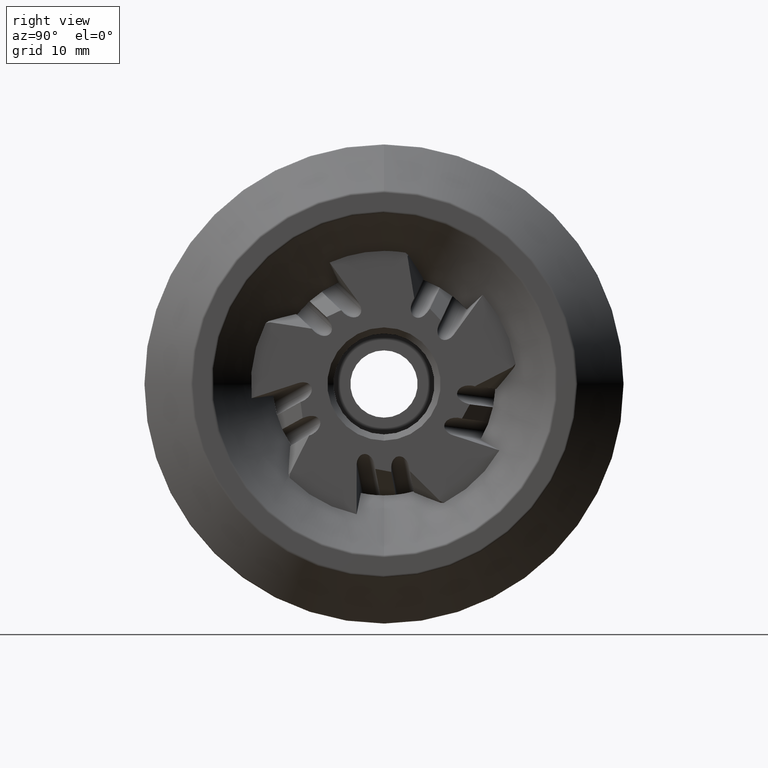
[diagram: clean part render]
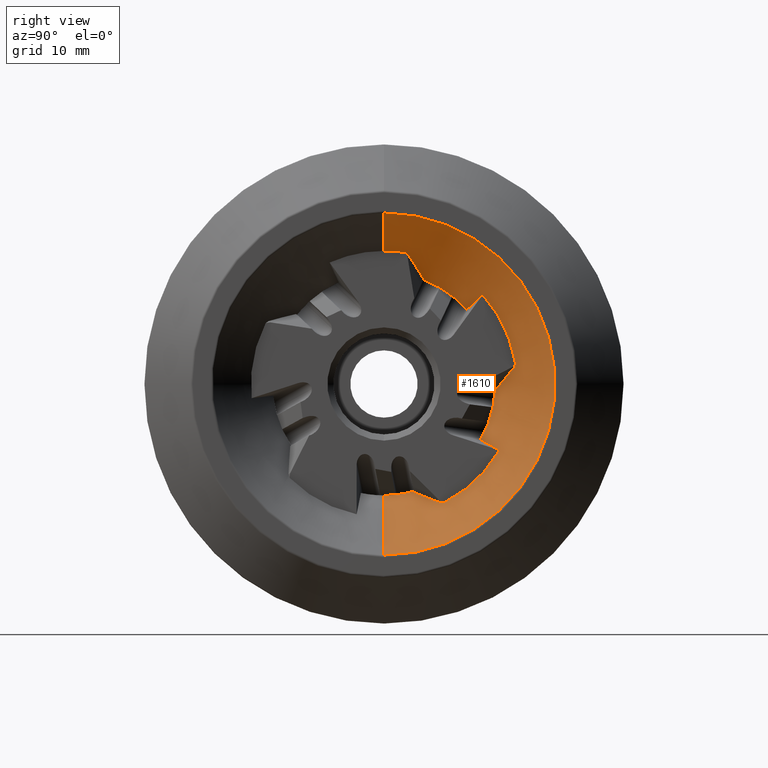
[diagram: same view with one face highlighted and labeled with its STEP entity id]
A machine part, right view. The second image highlights one B-rep face of the part: STEP entity #1610.
In plain terms, the highlighted conical surface has half-angle 45 deg.
Its self-contained STEP definition (entity closure, byte-faithful):
#580 = VERTEX_POINT ( 'NONE', #1577 ) ;
#612 = VERTEX_POINT ( 'NONE', #10104 ) ;
#639 = VERTEX_POINT ( 'NONE', #5611 ) ;
#661 = VERTEX_POINT ( 'NONE', #5484 ) ;
#663 = VERTEX_POINT ( 'NONE', #5487 ) ;
#667 = VERTEX_POINT ( 'NONE', #5613 ) ;
#680 = VERTEX_POINT ( 'NONE', #5650 ) ;
#689 = VERTEX_POINT ( 'NONE', #5565 ) ;
#698 = VERTEX_POINT ( 'NONE', #5556 ) ;
#703 = VERTEX_POINT ( 'NONE', #5535 ) ;
#706 = VERTEX_POINT ( 'NONE', #5581 ) ;
#713 = VERTEX_POINT ( 'NONE', #5588 ) ;
#989 = B_SPLINE_CURVE_WITH_KNOTS ( 'NONE', 3,
 ( #6163, #6164, #6169, #6170 ),
 .UNSPECIFIED., .F., .F.,
 ( 4, 4 ),
 ( 0.007157800767803730100, 0.01217775241202292100 ),
 .UNSPECIFIED. ) ;
#1024 = B_SPLINE_CURVE_WITH_KNOTS ( 'NONE', 3,
 ( #4531, #4530, #4536, #4537 ),
 .UNSPECIFIED., .F., .F.,
 ( 4, 4 ),
 ( 0.007157800767803723100, 0.01217775241202291200 ),
 .UNSPECIFIED. ) ;
#1330 = EDGE_LOOP ( 'NONE', ( #9914, #9913, #9916, #9915, #9918, #9917, #9920, #9919, #9922, #9921, #9928, #9923, #9926, #9927, #9924, #9925, #9933, #9932, #9929, #9931 ) ) ;
#1458 = FACE_OUTER_BOUND ( 'NONE', #1330, .T. ) ;
#1468 = CONICAL_SURFACE ( 'NONE', #2716, 18.20050506338827000, 0.7853981633974548300 ) ;
#1563 = AXIS2_PLACEMENT_3D ( 'NONE', #3791, #3792, #3793 ) ;
#1564 = AXIS2_PLACEMENT_3D ( 'NONE', #3794, #3795, #3796 ) ;
#1565 = AXIS2_PLACEMENT_3D ( 'NONE', #3787, #3788, #3789 ) ;
#1577 = CARTESIAN_POINT ( 'NONE',  ( -4.999999999999998200, 3.492265353784449900, 21.46780339715159500 ) ) ;
#1610 = ADVANCED_FACE ( 'NONE', ( #1458 ), #1468, .F. ) ;
#2557 = EDGE_CURVE ( 'NONE', #667, #3718, #5372, .T. ) ;
#2558 = EDGE_CURVE ( 'NONE', #713, #3675, #5299, .T. ) ;
#2559 = EDGE_CURVE ( 'NONE', #706, #3653, #5287, .T. ) ;
#2690 = EDGE_CURVE ( 'NONE', #3664, #612, #8651, .T. ) ;
#2716 = AXIS2_PLACEMENT_3D ( 'NONE', #5666, #5665, #5465 ) ;
#3298 = VERTEX_POINT ( 'NONE', #8020 ) ;
#3392 = VERTEX_POINT ( 'NONE', #8087 ) ;
#3547 = VERTEX_POINT ( 'NONE', #8142 ) ;
#3639 = VERTEX_POINT ( 'NONE', #8174 ) ;
#3653 = VERTEX_POINT ( 'NONE', #8182 ) ;
#3664 = VERTEX_POINT ( 'NONE', #8185 ) ;
#3675 = VERTEX_POINT ( 'NONE', #8195 ) ;
#3718 = VERTEX_POINT ( 'NONE', #8216 ) ;
#3787 = CARTESIAN_POINT ( 'NONE',  ( -8.549494936611603500, 0.0000000000000000000, 0.0000000000000000000 ) ) ;
#3788 = DIRECTION ( 'NONE',  ( -1.000000000000000000, -0.0000000000000000000, -0.0000000000000000000 ) ) ;
#3789 = DIRECTION ( 'NONE',  ( 0.0000000000000000000, 0.0000000000000000000, 1.000000000000000000 ) ) ;
#3791 = CARTESIAN_POINT ( 'NONE',  ( -8.549494936611603500, 0.0000000000000000000, 0.0000000000000000000 ) ) ;
#3792 = DIRECTION ( 'NONE',  ( -1.000000000000000000, -0.0000000000000000000, -0.0000000000000000000 ) ) ;
#3793 = DIRECTION ( 'NONE',  ( 0.0000000000000000000, 0.0000000000000000000, 1.000000000000000000 ) ) ;
#3794 = CARTESIAN_POINT ( 'NONE',  ( -8.549494936611603500, 0.0000000000000000000, 0.0000000000000000000 ) ) ;
#3795 = DIRECTION ( 'NONE',  ( -1.000000000000000000, -0.0000000000000000000, -0.0000000000000000000 ) ) ;
#3796 = DIRECTION ( 'NONE',  ( 0.0000000000000000000, 0.0000000000000000000, 1.000000000000000000 ) ) ;
#4457 = CARTESIAN_POINT ( 'NONE',  ( 1.203553390593272500, 0.0000000000000000000, 0.0000000000000000000 ) ) ;
#4458 = DIRECTION ( 'NONE',  ( 1.000000000000000000, 0.0000000000000000000, 0.0000000000000000000 ) ) ;
#4459 = DIRECTION ( 'NONE',  ( 0.0000000000000000000, 0.0000000000000000000, 1.000000000000000000 ) ) ;
#4530 = CARTESIAN_POINT ( 'NONE',  ( -6.183172990094065300, 17.82560931981998900, -10.25876305822939300 ) ) ;
#4531 = CARTESIAN_POINT ( 'NONE',  ( -4.999999999999998200, 18.85842066870946700, -10.83616490655195500 ) ) ;
#4536 = CARTESIAN_POINT ( 'NONE',  ( -7.366339535913407000, 16.79279110008935700, -9.681360294538970700 ) ) ;
#4537 = CARTESIAN_POINT ( 'NONE',  ( -8.549494936611603500, 15.75996099806285100, -9.103955947936032800 ) ) ;
#4925 = CARTESIAN_POINT ( 'NONE',  ( -8.549494936611603500, 0.0000000000000000000, -18.20050506338827000 ) ) ;
#4930 = DIRECTION ( 'NONE',  ( 0.7071067811865430200, 0.0000000000000000000, -0.7071067811865521200 ) ) ;
#4987 = EDGE_CURVE ( 'NONE', #703, #713, #5677, .T. ) ;
#4993 = EDGE_CURVE ( 'NONE', #689, #706, #5730, .T. ) ;
#5050 = EDGE_CURVE ( 'NONE', #698, #703, #5732, .T. ) ;
#5060 = EDGE_CURVE ( 'NONE', #580, #680, #5704, .T. ) ;
#5066 = EDGE_CURVE ( 'NONE', #680, #689, #5745, .T. ) ;
#5102 = EDGE_CURVE ( 'NONE', #663, #667, #5766, .T. ) ;
#5104 = EDGE_CURVE ( 'NONE', #639, #661, #5804, .T. ) ;
#5109 = EDGE_CURVE ( 'NONE', #661, #663, #5699, .T. ) ;
#5133 = EDGE_CURVE ( 'NONE', #3298, #639, #8880, .T. ) ;
#5183 = EDGE_CURVE ( 'NONE', #612, #698, #5727, .T. ) ;
#5220 = EDGE_CURVE ( 'NONE', #3664, #3653, #989, .T. ) ;
#5244 = EDGE_CURVE ( 'NONE', #3639, #580, #8943, .T. ) ;
#5287 = CIRCLE ( 'NONE', #1564, 18.20050506338827000 ) ;
#5299 = CIRCLE ( 'NONE', #1563, 18.20050506338827000 ) ;
#5372 = CIRCLE ( 'NONE', #1565, 18.20050506338827000 ) ;
#5465 = DIRECTION ( 'NONE',  ( 0.0000000000000000000, 0.0000000000000000000, -1.000000000000000000 ) ) ;
#5484 = CARTESIAN_POINT ( 'NONE',  ( -5.293915662082415700, 9.178766522586419900, -19.39365360729317400 ) ) ;
#5487 = CARTESIAN_POINT ( 'NONE',  ( -8.390539710632202400, 4.890849126641629000, -17.69602715123643900 ) ) ;
#5535 = CARTESIAN_POINT ( 'NONE',  ( -8.390539710632207700, 18.34127743177549900, -0.8168991905437739100 ) ) ;
#5556 = CARTESIAN_POINT ( 'NONE',  ( -5.293915662082413000, 21.28085548086625800, 2.736557165182786000 ) ) ;
#5565 = CARTESIAN_POINT ( 'NONE',  ( -8.390539710632204200, 6.444683723287170100, 17.19115568609818100 ) ) ;
#5581 = CARTESIAN_POINT ( 'NONE',  ( -8.549494936611603500, 6.335415941771741700, 17.06226507258536500 ) ) ;
#5588 = CARTESIAN_POINT ( 'NONE',  ( -8.549494936611603500, 18.18492957247894300, -0.7528087449032864200 ) ) ;
#5611 = CARTESIAN_POINT ( 'NONE',  ( -4.999999999999997300, 9.793156215881667800, -19.42051985224223600 ) ) ;
#5613 = CARTESIAN_POINT ( 'NONE',  ( -8.549494936611603500, 4.903488617043493900, -17.52752646396367100 ) ) ;
#5650 = CARTESIAN_POINT ( 'NONE',  ( -5.293915662082416600, 3.973525474263583500, 21.08493894753330600 ) ) ;
#5665 = DIRECTION ( 'NONE',  ( 1.000000000000000000, 0.0000000000000000000, 0.0000000000000000000 ) ) ;
#5666 = CARTESIAN_POINT ( 'NONE',  ( -8.549494936611603500, 0.0000000000000000000, 0.0000000000000000000 ) ) ;
#5677 = B_SPLINE_CURVE_WITH_KNOTS ( 'NONE', 3,
 ( #8254, #8260, #8265, #8266 ),
 .UNSPECIFIED., .F., .F.,
 ( 4, 4 ),
 ( 0.004117233414079157800, 0.004347146084937584400 ),
 .UNSPECIFIED. ) ;
#5699 = B_SPLINE_CURVE_WITH_KNOTS ( 'NONE', 3,
 ( #9451, #9445, #9454, #9455 ),
 .UNSPECIFIED., .F., .F.,
 ( 4, 4 ),
 ( 0.0005050826551291768300, 0.006060010491680657300 ),
 .UNSPECIFIED. ) ;
#5704 = B_SPLINE_CURVE_WITH_KNOTS ( 'NONE', 3,
 ( #9254, #9253, #9261, #9262 ),
 .UNSPECIFIED., .F., .F.,
 ( 4, 4 ),
 ( 0.01030820072038262200, 0.01098735182529814900 ),
 .UNSPECIFIED. ) ;
#5727 = B_SPLINE_CURVE_WITH_KNOTS ( 'NONE', 3,
 ( #9694, #9695, #9700, #9701 ),
 .UNSPECIFIED., .F., .F.,
 ( 4, 4 ),
 ( 0.01030771212576970200, 0.01098708414327659700 ),
 .UNSPECIFIED. ) ;
#5730 = B_SPLINE_CURVE_WITH_KNOTS ( 'NONE', 3,
 ( #8279, #8280, #8295, #8296 ),
 .UNSPECIFIED., .F., .F.,
 ( 4, 4 ),
 ( 0.004117233414079158600, 0.004347146084937590500 ),
 .UNSPECIFIED. ) ;
#5732 = B_SPLINE_CURVE_WITH_KNOTS ( 'NONE', 3,
 ( #9223, #9217, #9226, #9227 ),
 .UNSPECIFIED., .F., .F.,
 ( 4, 4 ),
 ( 5.985082899641828300E-005, 0.005614771857469389100 ),
 .UNSPECIFIED. ) ;
#5745 = B_SPLINE_CURVE_WITH_KNOTS ( 'NONE', 3,
 ( #9277, #9271, #9280, #9281 ),
 .UNSPECIFIED., .F., .F.,
 ( 4, 4 ),
 ( 0.0002856400448685155700, 0.005840569969568348700 ),
 .UNSPECIFIED. ) ;
#5766 = B_SPLINE_CURVE_WITH_KNOTS ( 'NONE', 3,
 ( #9420, #9419, #9431, #9432 ),
 .UNSPECIFIED., .F., .F.,
 ( 4, 4 ),
 ( 0.004117233414079166400, 0.004347146084937600900 ),
 .UNSPECIFIED. ) ;
#5804 = B_SPLINE_CURVE_WITH_KNOTS ( 'NONE', 3,
 ( #9434, #9433, #9439, #9440 ),
 .UNSPECIFIED., .F., .F.,
 ( 4, 4 ),
 ( 0.01030851806578562600, 0.01098745013166422600 ),
 .UNSPECIFIED. ) ;
#6163 = CARTESIAN_POINT ( 'NONE',  ( -4.999999999999998200, 16.13337771972804900, 14.58686475403741900 ) ) ;
#6164 = CARTESIAN_POINT ( 'NONE',  ( -6.183172990094068000, 15.26507967056984900, 13.78302977428766800 ) ) ;
#6169 = CARTESIAN_POINT ( 'NONE',  ( -7.366339535913408700, 14.39677862763840300, 12.97918854284389300 ) ) ;
#6170 = CARTESIAN_POINT ( 'NONE',  ( -8.549494936611603500, 13.52847240743633100, 12.17533649981206300 ) ) ;
#6289 = CARTESIAN_POINT ( 'NONE',  ( -4.999999999999998200, 0.0000000000000000000, 0.0000000000000000000 ) ) ;
#6290 = DIRECTION ( 'NONE',  ( -1.000000000000000000, 0.0000000000000000000, 0.0000000000000000000 ) ) ;
#6291 = DIRECTION ( 'NONE',  ( 0.0000000000000000000, 0.0000000000000000000, 1.000000000000000000 ) ) ;
#6413 = AXIS2_PLACEMENT_3D ( 'NONE', #7265, #7266, #7267 ) ;
#6499 = AXIS2_PLACEMENT_3D ( 'NONE', #9532, #9533, #9534 ) ;
#6581 = AXIS2_PLACEMENT_3D ( 'NONE', #6289, #6290, #6291 ) ;
#6645 = AXIS2_PLACEMENT_3D ( 'NONE', #4457, #4458, #4459 ) ;
#7265 = CARTESIAN_POINT ( 'NONE',  ( -4.999999999999998200, 0.0000000000000000000, 0.0000000000000000000 ) ) ;
#7266 = DIRECTION ( 'NONE',  ( -1.000000000000000000, 0.0000000000000000000, 0.0000000000000000000 ) ) ;
#7267 = DIRECTION ( 'NONE',  ( 0.0000000000000000000, 0.0000000000000000000, 1.000000000000000000 ) ) ;
#7427 = DIRECTION ( 'NONE',  ( 0.7071067811865430200, 8.659560562354990800E-017, 0.7071067811865521200 ) ) ;
#7432 = CARTESIAN_POINT ( 'NONE',  ( -8.549494936611603500, 2.228919026874363600E-015, 18.20050506338827000 ) ) ;
#8020 = CARTESIAN_POINT ( 'NONE',  ( -4.999999999999998200, 18.85842066870946700, -10.83616490655195500 ) ) ;
#8087 = CARTESIAN_POINT ( 'NONE',  ( 1.203553390593272500, 3.423322968458469600E-015, 27.95355339059327100 ) ) ;
#8142 = CARTESIAN_POINT ( 'NONE',  ( 1.203553390593272500, 0.0000000000000000000, -27.95355339059327100 ) ) ;
#8174 = CARTESIAN_POINT ( 'NONE',  ( -4.999999999999998200, 2.663606788145483600E-015, 21.74999999999992200 ) ) ;
#8182 = CARTESIAN_POINT ( 'NONE',  ( -8.549494936611603500, 13.52847240743633100, 12.17533649981206300 ) ) ;
#8185 = CARTESIAN_POINT ( 'NONE',  ( -4.999999999999998200, 16.13337771972804900, 14.58686475403741900 ) ) ;
#8195 = CARTESIAN_POINT ( 'NONE',  ( -8.549494936611603500, 15.75996099806285100, -9.103955947936032800 ) ) ;
#8216 = CARTESIAN_POINT ( 'NONE',  ( -8.549494936611603500, 0.0000000000000000000, -18.20050506338827000 ) ) ;
#8254 = CARTESIAN_POINT ( 'NONE',  ( -8.390539710632207700, 18.34127743177549900, -0.8168991905437739100 ) ) ;
#8260 = CARTESIAN_POINT ( 'NONE',  ( -8.442377316104952500, 18.29059378518369900, -0.7898363215454672300 ) ) ;
#8265 = CARTESIAN_POINT ( 'NONE',  ( -8.495347697861083300, 18.23847592043000900, -0.7684442257254851000 ) ) ;
#8266 = CARTESIAN_POINT ( 'NONE',  ( -8.549494936611603500, 18.18492957247894300, -0.7528087449032864200 ) ) ;
#8279 = CARTESIAN_POINT ( 'NONE',  ( -8.390539710632204200, 6.444683723287170100, 17.19115568609818100 ) ) ;
#8280 = CARTESIAN_POINT ( 'NONE',  ( -8.442377316104948900, 6.403283297242928100, 17.15131556017447100 ) ) ;
#8295 = CARTESIAN_POINT ( 'NONE',  ( -8.495347697861083300, 6.366832899196698900, 17.10835904643875300 ) ) ;
#8296 = CARTESIAN_POINT ( 'NONE',  ( -8.549494936611603500, 6.335415941771741700, 17.06226507258536500 ) ) ;
#8529 = EDGE_CURVE ( 'NONE', #3547, #3392, #8997, .T. ) ;
#8543 = EDGE_CURVE ( 'NONE', #3298, #3675, #1024, .T. ) ;
#8651 = CIRCLE ( 'NONE', #6413, 21.74999999999992200 ) ;
#8732 = EDGE_CURVE ( 'NONE', #3718, #3547, #9086, .T. ) ;
#8750 = EDGE_CURVE ( 'NONE', #3639, #3392, #9112, .T. ) ;
#8880 = CIRCLE ( 'NONE', #6499, 21.74999999999992200 ) ;
#8943 = CIRCLE ( 'NONE', #6581, 21.74999999999992200 ) ;
#8997 = CIRCLE ( 'NONE', #6645, 27.95355339059327100 ) ;
#9086 = LINE ( 'NONE', #4925, #9093 ) ;
#9093 = VECTOR ( 'NONE', #4930, 999.9999999999998900 ) ;
#9112 = LINE ( 'NONE', #7432, #9114 ) ;
#9114 = VECTOR ( 'NONE', #7427, 999.9999999999998900 ) ;
#9217 = CARTESIAN_POINT ( 'NONE',  ( -6.368938720217112600, 20.34970394176897600, 1.548902798747573900 ) ) ;
#9223 = CARTESIAN_POINT ( 'NONE',  ( -5.293915662082413000, 21.28085548086625800, 2.736557165182786000 ) ) ;
#9226 = CARTESIAN_POINT ( 'NONE',  ( -7.407879537219783600, 19.37750404940690200, 0.3639190250025745600 ) ) ;
#9227 = CARTESIAN_POINT ( 'NONE',  ( -8.390539710632207700, 18.34127743177549900, -0.8168991905437739100 ) ) ;
#9253 = CARTESIAN_POINT ( 'NONE',  ( -5.098927247884097900, 3.652912960868615100, 21.34144246195560500 ) ) ;
#9254 = CARTESIAN_POINT ( 'NONE',  ( -4.999999999999998200, 3.492265353784449900, 21.46780339715159500 ) ) ;
#9261 = CARTESIAN_POINT ( 'NONE',  ( -5.196912155075245300, 3.813336102352567800, 21.21383815773150900 ) ) ;
#9262 = CARTESIAN_POINT ( 'NONE',  ( -5.293915662082416600, 3.973525474263583500, 21.08493894753330600 ) ) ;
#9271 = CARTESIAN_POINT ( 'NONE',  ( -6.368884991504622000, 4.815268176981730300, 19.83241842895369800 ) ) ;
#9277 = CARTESIAN_POINT ( 'NONE',  ( -5.293915662082416600, 3.973525474263583500, 21.08493894753330600 ) ) ;
#9280 = CARTESIAN_POINT ( 'NONE',  ( -7.407822695499534800, 5.641824061183006800, 18.54163677273246000 ) ) ;
#9281 = CARTESIAN_POINT ( 'NONE',  ( -8.390539710632204200, 6.444683723287170100, 17.19115568609818100 ) ) ;
#9419 = CARTESIAN_POINT ( 'NONE',  ( -8.442377316104948900, 4.900925336418350900, -17.63946125243868600 ) ) ;
#9420 = CARTESIAN_POINT ( 'NONE',  ( -8.390539710632202400, 4.890849126641629000, -17.69602715123643900 ) ) ;
#9431 = CARTESIAN_POINT ( 'NONE',  ( -8.495347697861083300, 4.905165122625727600, -17.58328369639562500 ) ) ;
#9432 = CARTESIAN_POINT ( 'NONE',  ( -8.549494936611603500, 4.903488617043493900, -17.52752646396367100 ) ) ;
#9433 = CARTESIAN_POINT ( 'NONE',  ( -5.098924655751292600, 9.588921829045205000, -19.41271820693103200 ) ) ;
#9434 = CARTESIAN_POINT ( 'NONE',  ( -4.999999999999997300, 9.793156215881667800, -19.42051985224223600 ) ) ;
#9439 = CARTESIAN_POINT ( 'NONE',  ( -5.196909578574040900, 9.384132956141346700, -19.40377857744299200 ) ) ;
#9440 = CARTESIAN_POINT ( 'NONE',  ( -5.293915662082415700, 9.178766522586419900, -19.39365360729317400 ) ) ;
#9445 = CARTESIAN_POINT ( 'NONE',  ( -6.368833343802346100, 7.761637372478736200, -18.87513208279144200 ) ) ;
#9451 = CARTESIAN_POINT ( 'NONE',  ( -5.293915662082415700, 9.178766522586419900, -19.39365360729317400 ) ) ;
#9454 = CARTESIAN_POINT ( 'NONE',  ( -7.407768043805314000, 6.334249370743342500, -18.31671474814700300 ) ) ;
#9455 = CARTESIAN_POINT ( 'NONE',  ( -8.390539710632202400, 4.890849126641629000, -17.69602715123643900 ) ) ;
#9532 = CARTESIAN_POINT ( 'NONE',  ( -4.999999999999998200, 0.0000000000000000000, 0.0000000000000000000 ) ) ;
#9533 = DIRECTION ( 'NONE',  ( -1.000000000000000000, 0.0000000000000000000, 0.0000000000000000000 ) ) ;
#9534 = DIRECTION ( 'NONE',  ( 0.0000000000000000000, 0.0000000000000000000, 1.000000000000000000 ) ) ;
#9694 = CARTESIAN_POINT ( 'NONE',  ( -5.000000000000027500, 21.49626365459052100, 3.312574360271506500 ) ) ;
#9695 = CARTESIAN_POINT ( 'NONE',  ( -5.098929980519156600, 21.42572815613666000, 3.120736431396139200 ) ) ;
#9700 = CARTESIAN_POINT ( 'NONE',  ( -5.196914870937046500, 21.35394263011244600, 2.928732977087688200 ) ) ;
#9701 = CARTESIAN_POINT ( 'NONE',  ( -5.293915662082413000, 21.28085548086625800, 2.736557165182786000 ) ) ;
#9913 = ORIENTED_EDGE ( 'NONE', *, *, #5244, .T. ) ;
#9914 = ORIENTED_EDGE ( 'NONE', *, *, #8750, .F. ) ;
#9915 = ORIENTED_EDGE ( 'NONE', *, *, #5066, .T. ) ;
#9916 = ORIENTED_EDGE ( 'NONE', *, *, #5060, .T. ) ;
#9917 = ORIENTED_EDGE ( 'NONE', *, *, #2559, .T. ) ;
#9918 = ORIENTED_EDGE ( 'NONE', *, *, #4993, .T. ) ;
#9919 = ORIENTED_EDGE ( 'NONE', *, *, #2690, .T. ) ;
#9920 = ORIENTED_EDGE ( 'NONE', *, *, #5220, .F. ) ;
#9921 = ORIENTED_EDGE ( 'NONE', *, *, #5050, .T. ) ;
#9922 = ORIENTED_EDGE ( 'NONE', *, *, #5183, .T. ) ;
#9923 = ORIENTED_EDGE ( 'NONE', *, *, #2558, .T. ) ;
#9924 = ORIENTED_EDGE ( 'NONE', *, *, #5104, .T. ) ;
#9925 = ORIENTED_EDGE ( 'NONE', *, *, #5109, .T. ) ;
#9926 = ORIENTED_EDGE ( 'NONE', *, *, #8543, .F. ) ;
#9927 = ORIENTED_EDGE ( 'NONE', *, *, #5133, .T. ) ;
#9928 = ORIENTED_EDGE ( 'NONE', *, *, #4987, .T. ) ;
#9929 = ORIENTED_EDGE ( 'NONE', *, *, #8732, .T. ) ;
#9931 = ORIENTED_EDGE ( 'NONE', *, *, #8529, .T. ) ;
#9932 = ORIENTED_EDGE ( 'NONE', *, *, #2557, .T. ) ;
#9933 = ORIENTED_EDGE ( 'NONE', *, *, #5102, .T. ) ;
#10104 = CARTESIAN_POINT ( 'NONE',  ( -5.000000000000027500, 21.49626365459052100, 3.312574360271506500 ) ) ;